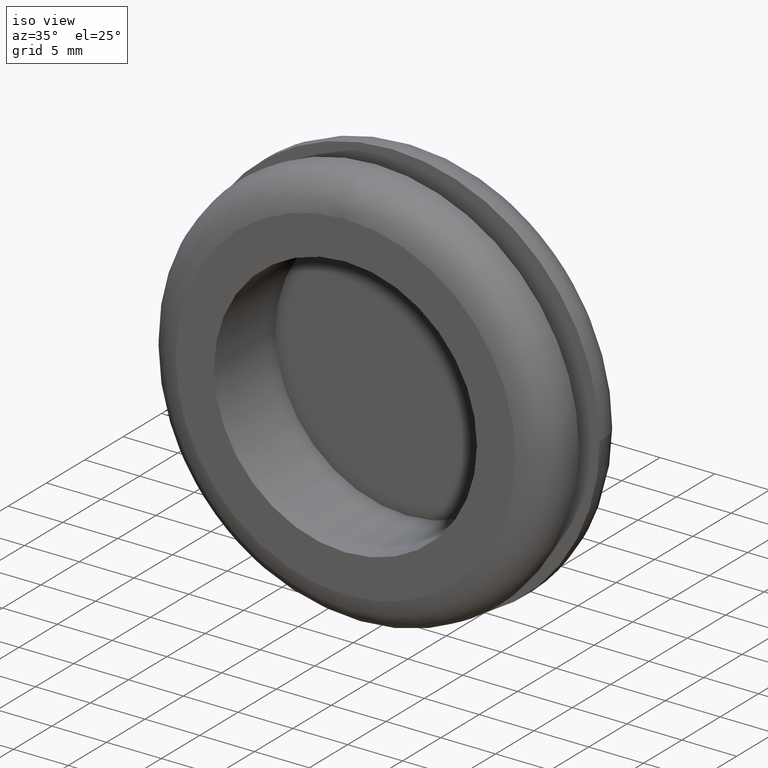
[diagram: clean part render]
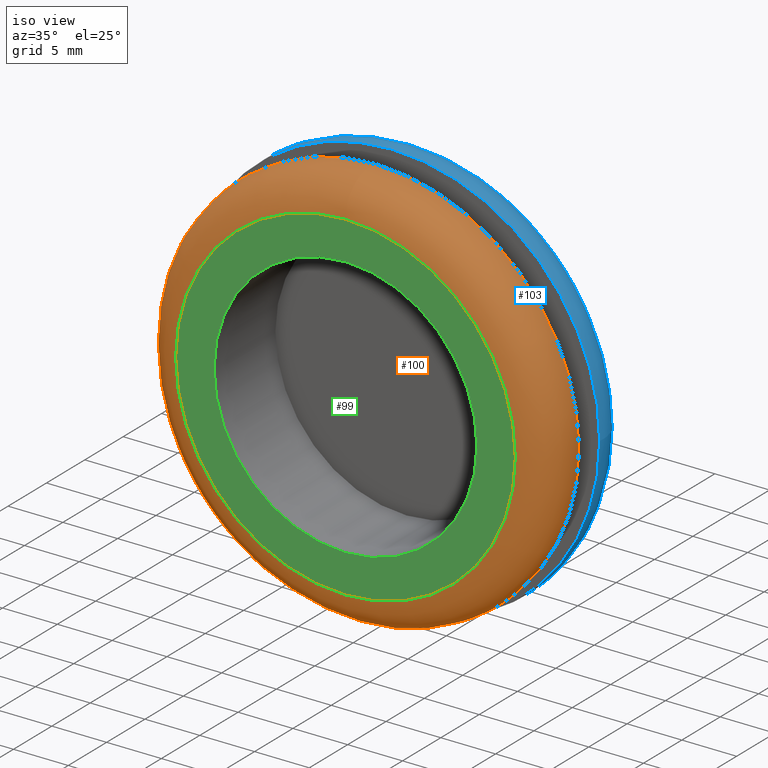
[diagram: same view with three faces highlighted in distinct colors, each labeled with its STEP entity id]
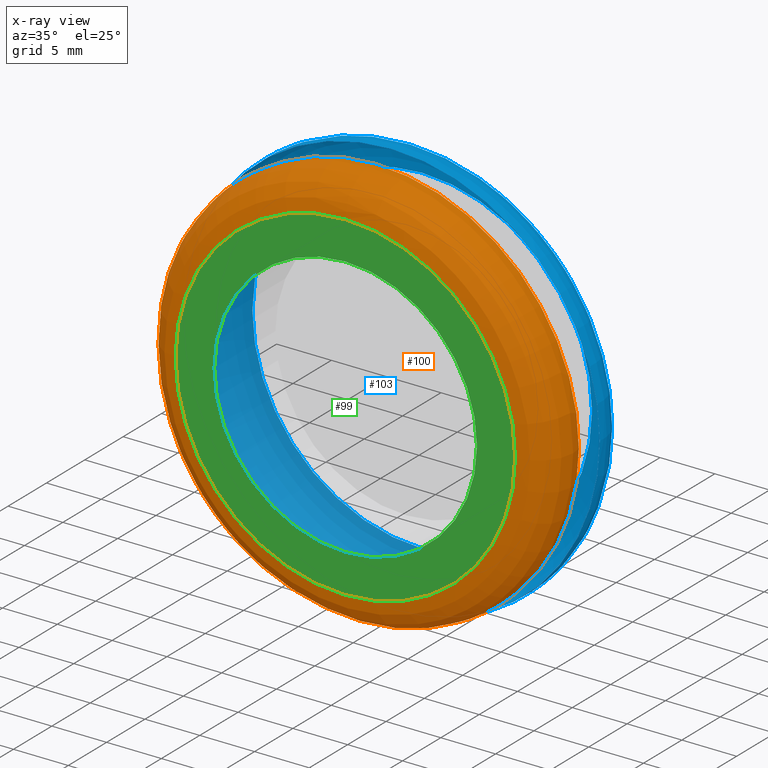
[diagram: x-ray of the same camera — body ghosted, the three highlighted faces saturated]
A machine part, iso view with three faces highlighted in distinct colors.
The next image is the same camera in x-ray (body ghosted, the three faces saturated) — at least one of them is partly hidden behind the body in this view.
Their STEP definitions:

[orange] entity #100 — the highlighted toroidal blend (fillet) surface has major radius 15.5 mm and minor (blend) radius 3.125 mm.
#15=TOROIDAL_SURFACE('',#116,15.5,3.125);
#25=FACE_BOUND('',#46,.T.);
#33=FACE_OUTER_BOUND('',#45,.T.);
#45=EDGE_LOOP('',(#85));
#46=EDGE_LOOP('',(#86));
#56=CIRCLE('',#112,18.5);
#58=CIRCLE('',#115,15.5);
#64=VERTEX_POINT('',#168);
#66=VERTEX_POINT('',#173);
#72=EDGE_CURVE('',#64,#64,#56,.T.);
#74=EDGE_CURVE('',#66,#66,#58,.T.);
#85=ORIENTED_EDGE('',*,*,#72,.F.);
#86=ORIENTED_EDGE('',*,*,#74,.T.);
#100=ADVANCED_FACE('',(#33,#25),#15,.T.);
#112=AXIS2_PLACEMENT_3D('',#169,#136,#137);
#115=AXIS2_PLACEMENT_3D('',#174,#142,#143);
#116=AXIS2_PLACEMENT_3D('',#175,#144,#145);
#136=DIRECTION('center_axis',(0.,1.,0.));
#137=DIRECTION('ref_axis',(1.,0.,0.));
#142=DIRECTION('center_axis',(0.,1.,0.));
#143=DIRECTION('ref_axis',(1.,0.,0.));
#144=DIRECTION('center_axis',(0.,1.,0.));
#145=DIRECTION('ref_axis',(0.,0.,1.));
#168=CARTESIAN_POINT('',(0.,-2.,18.5));
#169=CARTESIAN_POINT('Origin',(0.,-2.,0.));
#173=CARTESIAN_POINT('',(0.,-6.,15.5));
#174=CARTESIAN_POINT('Origin',(0.,-6.,0.));
#175=CARTESIAN_POINT('Origin',(0.,-2.875,0.));

[blue] entity #103 — the highlighted toroidal blend (fillet) surface has major radius 15.5 mm and minor (blend) radius 3.5312 mm.
#16=TOROIDAL_SURFACE('',#121,15.5,3.53125);
#27=FACE_BOUND('',#51,.T.);
#36=FACE_OUTER_BOUND('',#50,.T.);
#50=EDGE_LOOP('',(#90));
#51=EDGE_LOOP('',(#91));
#60=CIRCLE('',#120,15.5);
#61=CIRCLE('',#122,19.);
#68=VERTEX_POINT('',#180);
#69=VERTEX_POINT('',#183);
#76=EDGE_CURVE('',#68,#68,#60,.T.);
#77=EDGE_CURVE('',#69,#69,#61,.T.);
#90=ORIENTED_EDGE('',*,*,#76,.T.);
#91=ORIENTED_EDGE('',*,*,#77,.F.);
#103=ADVANCED_FACE('',(#36,#27),#16,.T.);
#120=AXIS2_PLACEMENT_3D('',#181,#152,#153);
#121=AXIS2_PLACEMENT_3D('',#182,#154,#155);
#122=AXIS2_PLACEMENT_3D('',#184,#156,#157);
#152=DIRECTION('center_axis',(1.83697019872103E-16,-1.,0.));
#153=DIRECTION('ref_axis',(1.,1.83697019872103E-16,0.));
#154=DIRECTION('center_axis',(1.83697019872103E-16,-1.,0.));
#155=DIRECTION('ref_axis',(0.,0.,-1.));
#156=DIRECTION('center_axis',(1.83697019872103E-16,-1.,0.));
#157=DIRECTION('ref_axis',(1.,1.83697019872103E-16,0.));
#180=CARTESIAN_POINT('',(15.5,4.,0.));
#181=CARTESIAN_POINT('Origin',(-7.34788079488411E-16,4.,0.));
#182=CARTESIAN_POINT('Origin',(-8.61079780650476E-17,0.468749999999997,
0.));
#183=CARTESIAN_POINT('',(19.,0.,0.));
#184=CARTESIAN_POINT('Origin',(6.41147307087944E-31,-3.49024337756996E-15,
0.));

[green] entity #99 — the highlighted planar face has unit normal (0, -1, 0).
#19=PLANE('',#114);
#24=FACE_BOUND('',#44,.T.);
#32=FACE_OUTER_BOUND('',#43,.T.);
#43=EDGE_LOOP('',(#83));
#44=EDGE_LOOP('',(#84));
#55=CIRCLE('',#109,12.);
#58=CIRCLE('',#115,15.5);
#63=VERTEX_POINT('',#164);
#66=VERTEX_POINT('',#173);
#71=EDGE_CURVE('',#63,#63,#55,.T.);
#74=EDGE_CURVE('',#66,#66,#58,.T.);
#83=ORIENTED_EDGE('',*,*,#74,.F.);
#84=ORIENTED_EDGE('',*,*,#71,.T.);
#99=ADVANCED_FACE('',(#32,#24),#19,.T.);
#109=AXIS2_PLACEMENT_3D('',#165,#130,#131);
#114=AXIS2_PLACEMENT_3D('',#172,#140,#141);
#115=AXIS2_PLACEMENT_3D('',#174,#142,#143);
#130=DIRECTION('center_axis',(0.,1.,0.));
#131=DIRECTION('ref_axis',(-1.,0.,0.));
#140=DIRECTION('center_axis',(0.,-1.,0.));
#141=DIRECTION('ref_axis',(0.,0.,-1.));
#142=DIRECTION('center_axis',(0.,1.,0.));
#143=DIRECTION('ref_axis',(1.,0.,0.));
#164=CARTESIAN_POINT('',(12.,-6.,1.46957615897682E-15));
#165=CARTESIAN_POINT('Origin',(0.,-6.,0.));
#172=CARTESIAN_POINT('Origin',(0.,-6.,15.5));
#173=CARTESIAN_POINT('',(0.,-6.,15.5));
#174=CARTESIAN_POINT('Origin',(0.,-6.,0.));